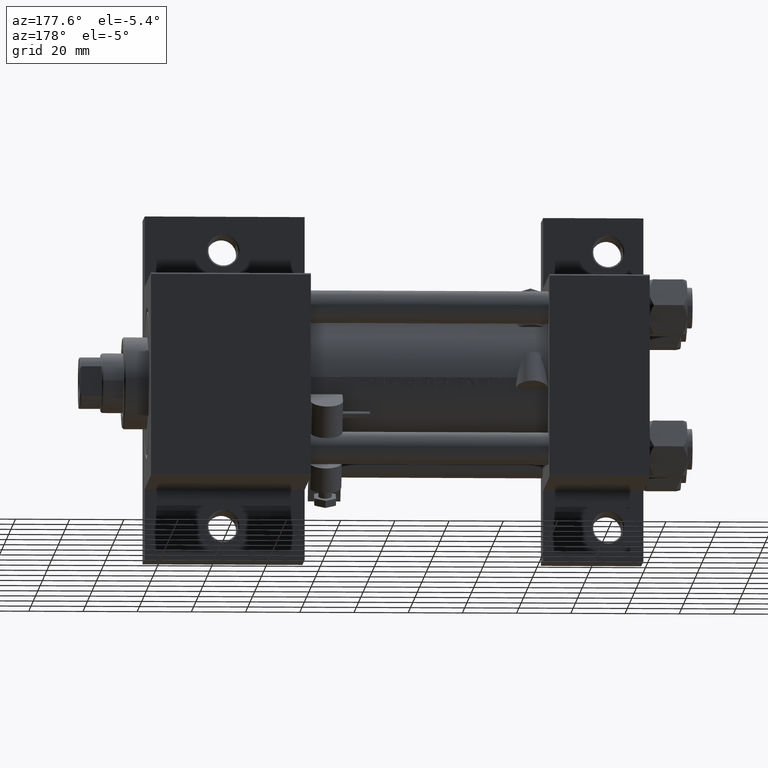
[diagram: clean part render]
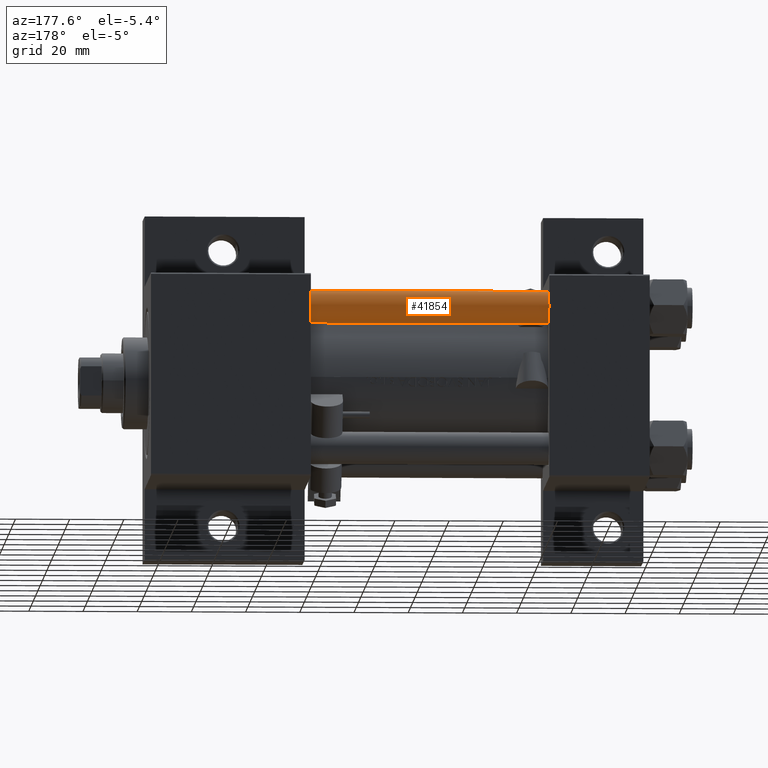
[diagram: same view with one face highlighted and labeled with its STEP entity id]
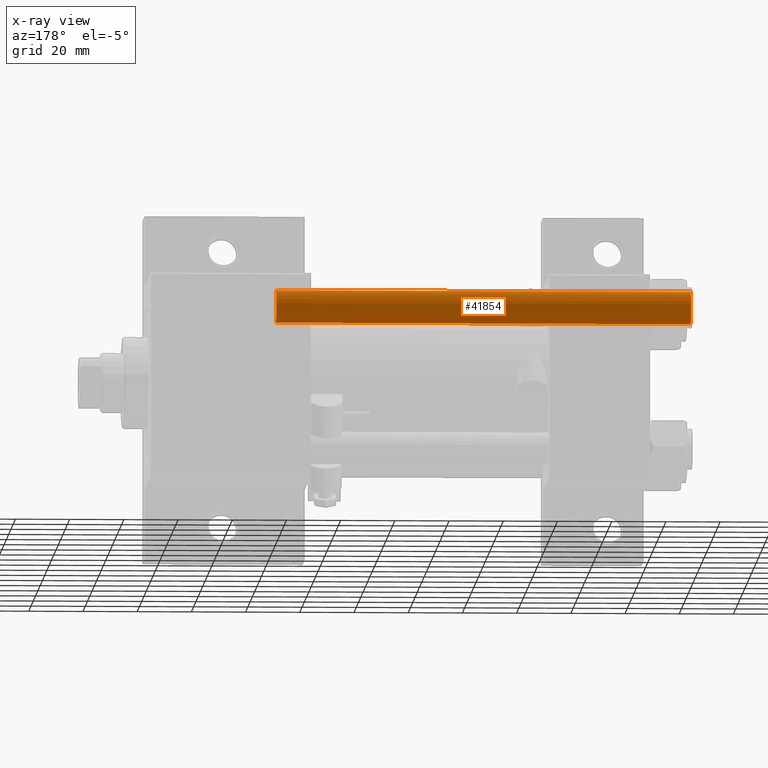
[diagram: x-ray of the same camera — body ghosted, the highlighted face saturated]
A machine part, auxiliary view. The second image highlights one B-rep face of the part: STEP entity #41854.
The next image is the same camera in x-ray: the body ghosted, the highlighted face saturated — about 0% of this face is hidden behind the body in this view.
In plain terms, the highlighted cylindrical surface (edge-blend (fillet) strip) has radius 6 mm, axis along (-1, -0, -0).
Its self-contained STEP definition (entity closure, byte-faithful):
#112 = DIRECTION ( 'NONE',  ( -0.000000000000000000, -0.000000000000000000, -1.000000000000000000 ) ) ;
#365 = AXIS2_PLACEMENT_3D ( 'NONE', #47986, #40597, #2497 ) ;
#532 = CARTESIAN_POINT ( 'NONE',  ( 0.000000000000000000, 0.000000000000000000, 0.5000000000000281997 ) ) ;
#564 = ORIENTED_EDGE ( 'NONE', *, *, #570, .T. ) ;
#570 = EDGE_CURVE ( 'NONE', #17918, #23407, #35651, .T. ) ;
#1931 = DIRECTION ( 'NONE',  ( -0.000000000000000000, -0.000000000000000000, -1.000000000000000000 ) ) ;
#2497 = DIRECTION ( 'NONE',  ( 1.000000000000000000, 0.000000000000000000, 0.000000000000000000 ) ) ;
#6310 = ORIENTED_EDGE ( 'NONE', *, *, #29661, .T. ) ;
#7905 = DIRECTION ( 'NONE',  ( 1.000000000000000000, 0.000000000000000000, 0.000000000000000000 ) ) ;
#8840 = FACE_OUTER_BOUND ( 'NONE', #37014, .T. ) ;
#9024 = CARTESIAN_POINT ( 'NONE',  ( 6.000000000000000888, 7.347880794884120722E-16, 0.5000000000000281997 ) ) ;
#10710 = LINE ( 'NONE', #45086, #34881 ) ;
#11609 = DIRECTION ( 'NONE',  ( -0.000000000000000000, -0.000000000000000000, 1.000000000000000000 ) ) ;
#15234 = CARTESIAN_POINT ( 'NONE',  ( -6.000000000000000888, 0.000000000000000000, 0.5000000000000281997 ) ) ;
#16937 = DIRECTION ( 'NONE',  ( -1.000000000000000000, 0.000000000000000000, 0.000000000000000000 ) ) ;
#17918 = VERTEX_POINT ( 'NONE', #42053 ) ;
#20046 = ORIENTED_EDGE ( 'NONE', *, *, #48311, .F. ) ;
#20628 = CYLINDRICAL_SURFACE ( 'NONE', #28257, 6.000000000000000888 ) ;
#23407 = VERTEX_POINT ( 'NONE', #34895 ) ;
#25721 = DIRECTION ( 'NONE',  ( -0.000000000000000000, -0.000000000000000000, -1.000000000000000000 ) ) ;
#28059 = ORIENTED_EDGE ( 'NONE', *, *, #43017, .T. ) ;
#28257 = AXIS2_PLACEMENT_3D ( 'NONE', #39064, #1931, #16937 ) ;
#28483 = VERTEX_POINT ( 'NONE', #9024 ) ;
#29172 = CARTESIAN_POINT ( 'NONE',  ( 6.000000000000000888, 7.347880794884120722E-16, 154.0000000000000000 ) ) ;
#29661 = EDGE_CURVE ( 'NONE', #23407, #28483, #36538, .T. ) ;
#31410 = AXIS2_PLACEMENT_3D ( 'NONE', #532, #11609, #7905 ) ;
#34881 = VECTOR ( 'NONE', #112, 1000.000000000000000 ) ;
#34895 = CARTESIAN_POINT ( 'NONE',  ( 6.000000000000000888, 7.347880794884120722E-16, 153.5000000000000000 ) ) ;
#35651 = CIRCLE ( 'NONE', #365, 6.000000000000000888 ) ;
#36538 = LINE ( 'NONE', #29172, #41321 ) ;
#37014 = EDGE_LOOP ( 'NONE', ( #564, #6310, #28059, #20046 ) ) ;
#39064 = CARTESIAN_POINT ( 'NONE',  ( 0.000000000000000000, 0.000000000000000000, 154.0000000000000000 ) ) ;
#40597 = DIRECTION ( 'NONE',  ( 0.000000000000000000, 0.000000000000000000, -1.000000000000000000 ) ) ;
#41321 = VECTOR ( 'NONE', #25721, 1000.000000000000000 ) ;
#41854 = ADVANCED_FACE ( 'NONE', ( #8840 ), #20628, .T. ) ;
#42053 = CARTESIAN_POINT ( 'NONE',  ( -6.000000000000000888, 0.000000000000000000, 153.5000000000000000 ) ) ;
#43017 = EDGE_CURVE ( 'NONE', #28483, #46554, #47112, .T. ) ;
#45086 = CARTESIAN_POINT ( 'NONE',  ( -6.000000000000000888, 0.000000000000000000, 154.0000000000000000 ) ) ;
#46554 = VERTEX_POINT ( 'NONE', #15234 ) ;
#47112 = CIRCLE ( 'NONE', #31410, 6.000000000000000888 ) ;
#47986 = CARTESIAN_POINT ( 'NONE',  ( 0.000000000000000000, 0.000000000000000000, 153.5000000000000000 ) ) ;
#48311 = EDGE_CURVE ( 'NONE', #17918, #46554, #10710, .T. ) ;